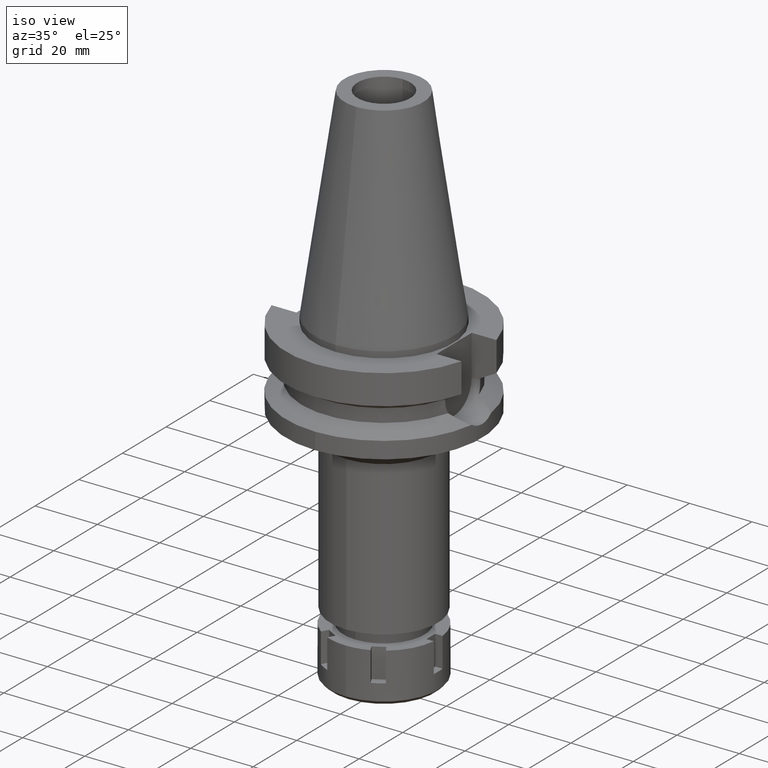
[diagram: clean part render]
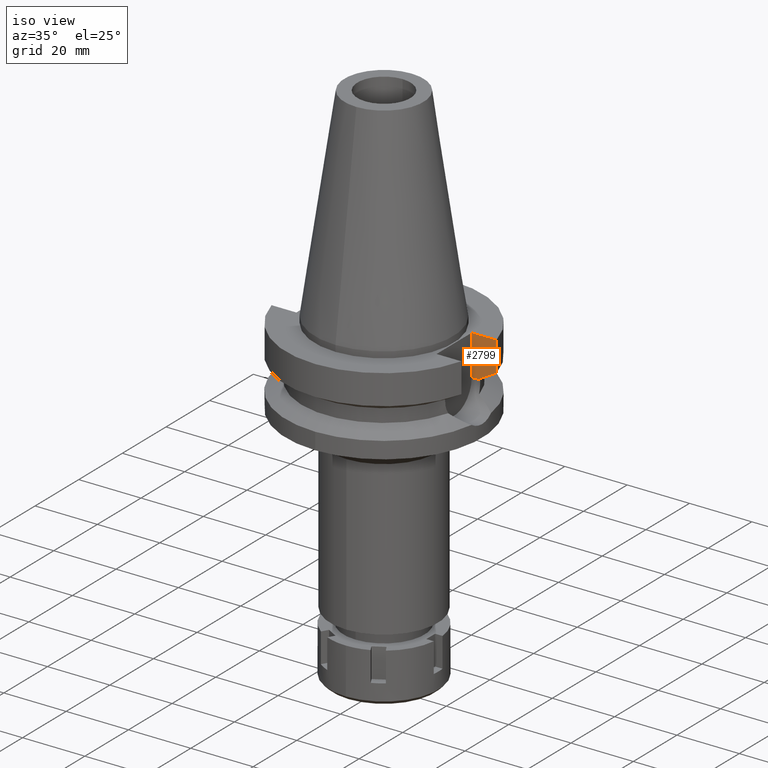
[diagram: same view with one face highlighted and labeled with its STEP entity id]
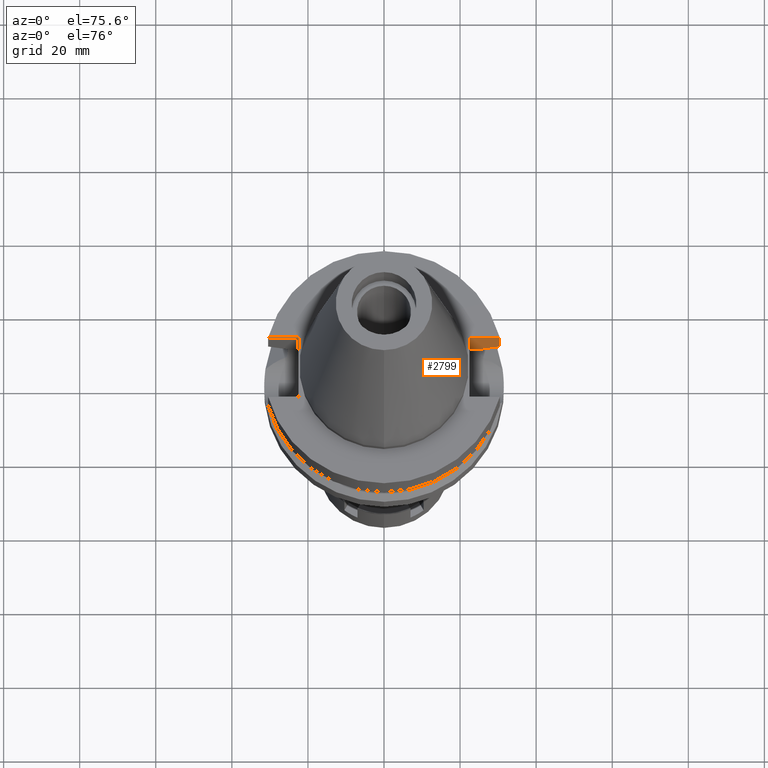
[diagram: same view with one face highlighted and labeled with its STEP entity id]
A machine part, iso view. The second image highlights one B-rep face of the part: STEP entity #2799.
A second angle (auxiliary view) of the same face is appended — the face is thin or edge-on in the first view.
In plain terms, the highlighted planar face has unit normal (0, 1, 0).
Its self-contained STEP definition (entity closure, byte-faithful):
#29 = ORIENTED_EDGE ( 'NONE', *, *, #1588, .T. ) ;
#53 = VECTOR ( 'NONE', #1443, 1000.000000000000227 ) ;
#103 = B_SPLINE_CURVE_WITH_KNOTS ( 'NONE', 3,
 ( #2260, #3430, #341, #1170 ),
 .UNSPECIFIED., .F., .F.,
 ( 4, 4 ),
 ( 0.0000000000000000000, 1.000000000000000000 ),
 .UNSPECIFIED. ) ;
#126 = ORIENTED_EDGE ( 'NONE', *, *, #1502, .F. ) ;
#140 = VERTEX_POINT ( 'NONE', #1701 ) ;
#196 = CARTESIAN_POINT ( 'NONE',  ( 30.45402272279000044, 8.050000000000000711, -2.000000000000000000 ) ) ;
#198 = EDGE_CURVE ( 'NONE', #3159, #292, #1119, .T. ) ;
#204 = CARTESIAN_POINT ( 'NONE',  ( 30.45402291382999849, 8.049999277277001042, -11.56551216207999921 ) ) ;
#292 = VERTEX_POINT ( 'NONE', #1560 ) ;
#300 = CARTESIAN_POINT ( 'NONE',  ( 22.50000000000000000, 8.050000000000000711, -2.000000000000000000 ) ) ;
#320 = LINE ( 'NONE', #2579, #53 ) ;
#341 = CARTESIAN_POINT ( 'NONE',  ( 26.83754615080338368, 8.049990819218811211, -13.57774888653237255 ) ) ;
#477 = FACE_OUTER_BOUND ( 'NONE', #2704, .T. ) ;
#603 = DIRECTION ( 'NONE',  ( -1.997160274275988996E-08, 7.555500240961958579E-08, 0.9999999999999970024 ) ) ;
#702 = CARTESIAN_POINT ( 'NONE',  ( 25.24772413156000184, 8.049995414687000306, -14.45229203637999937 ) ) ;
#843 = DIRECTION ( 'NONE',  ( 1.000000000000000000, -1.551559937893000172E-14, 0.0000000000000000000 ) ) ;
#847 = ORIENTED_EDGE ( 'NONE', *, *, #1909, .T. ) ;
#894 = VERTEX_POINT ( 'NONE', #196 ) ;
#1119 = LINE ( 'NONE', #3377, #2340 ) ;
#1170 = CARTESIAN_POINT ( 'NONE',  ( 25.24772413156000184, 8.049995414687000306, -14.45229203637999937 ) ) ;
#1266 = CARTESIAN_POINT ( 'NONE',  ( 22.50000000000000000, 8.050000000000000711, -14.94999999999999929 ) ) ;
#1283 = DIRECTION ( 'NONE',  ( 1.000000000000000000, 0.0000000000000000000, 0.0000000000000000000 ) ) ;
#1391 = ORIENTED_EDGE ( 'NONE', *, *, #2941, .T. ) ;
#1443 = DIRECTION ( 'NONE',  ( 2.937431449991140861E-06, -9.212857328731440611E-06, 0.9999999999532472872 ) ) ;
#1457 = LINE ( 'NONE', #300, #1517 ) ;
#1468 = AXIS2_PLACEMENT_3D ( 'NONE', #1266, #3253, #1283 ) ;
#1502 = EDGE_CURVE ( 'NONE', #2902, #3333, #103, .T. ) ;
#1517 = VECTOR ( 'NONE', #2513, 1000.000000000000000 ) ;
#1540 = DIRECTION ( 'NONE',  ( 1.000000000000000000, -3.506251283225999947E-14, 0.0000000000000000000 ) ) ;
#1560 = CARTESIAN_POINT ( 'NONE',  ( 25.24772266958000344, 8.050000000000000711, -14.94999999999999929 ) ) ;
#1588 = EDGE_CURVE ( 'NONE', #292, #3333, #320, .T. ) ;
#1611 = LINE ( 'NONE', #3290, #1884 ) ;
#1701 = CARTESIAN_POINT ( 'NONE',  ( 22.50000000000000000, 8.050000000000000711, -2.000000000000000000 ) ) ;
#1884 = VECTOR ( 'NONE', #1540, 1000.000000000000000 ) ;
#1891 = PLANE ( 'NONE',  #1468 ) ;
#1909 = EDGE_CURVE ( 'NONE', #140, #3159, #1457, .T. ) ;
#2130 = CARTESIAN_POINT ( 'NONE',  ( 22.50000000000000000, 8.050000000000000711, -14.94999999999999929 ) ) ;
#2260 = CARTESIAN_POINT ( 'NONE',  ( 30.45402291382999849, 8.049999277277001042, -11.56551216207999921 ) ) ;
#2340 = VECTOR ( 'NONE', #843, 1000.000000000000000 ) ;
#2513 = DIRECTION ( 'NONE',  ( 0.0000000000000000000, 0.0000000000000000000, -1.000000000000000000 ) ) ;
#2579 = CARTESIAN_POINT ( 'NONE',  ( 25.24772266958000344, 8.050000000000000711, -14.94999999999999929 ) ) ;
#2704 = EDGE_LOOP ( 'NONE', ( #126, #1391, #3542, #847, #3038, #29 ) ) ;
#2799 = ADVANCED_FACE ( 'NONE', ( #477 ), #1891, .F. ) ;
#2899 = VECTOR ( 'NONE', #603, 999.9999999999998863 ) ;
#2902 = VERTEX_POINT ( 'NONE', #204 ) ;
#2918 = CARTESIAN_POINT ( 'NONE',  ( 30.45402291382999849, 8.049999277277001042, -11.56551216207999921 ) ) ;
#2941 = EDGE_CURVE ( 'NONE', #2902, #894, #3200, .T. ) ;
#3038 = ORIENTED_EDGE ( 'NONE', *, *, #198, .T. ) ;
#3159 = VERTEX_POINT ( 'NONE', #2130 ) ;
#3200 = LINE ( 'NONE', #2918, #2899 ) ;
#3253 = DIRECTION ( 'NONE',  ( -0.0000000000000000000, 1.000000000000000000, 0.0000000000000000000 ) ) ;
#3290 = CARTESIAN_POINT ( 'NONE',  ( 22.50000000000000000, 8.050000000000000711, -2.000000000000000000 ) ) ;
#3318 = EDGE_CURVE ( 'NONE', #140, #894, #1611, .T. ) ;
#3333 = VERTEX_POINT ( 'NONE', #702 ) ;
#3377 = CARTESIAN_POINT ( 'NONE',  ( 22.50000000000000000, 8.050000000000000711, -14.94999999999999929 ) ) ;
#3430 = CARTESIAN_POINT ( 'NONE',  ( 28.57292328149092597, 8.049998555497538177, -12.61549606051901762 ) ) ;
#3542 = ORIENTED_EDGE ( 'NONE', *, *, #3318, .F. ) ;